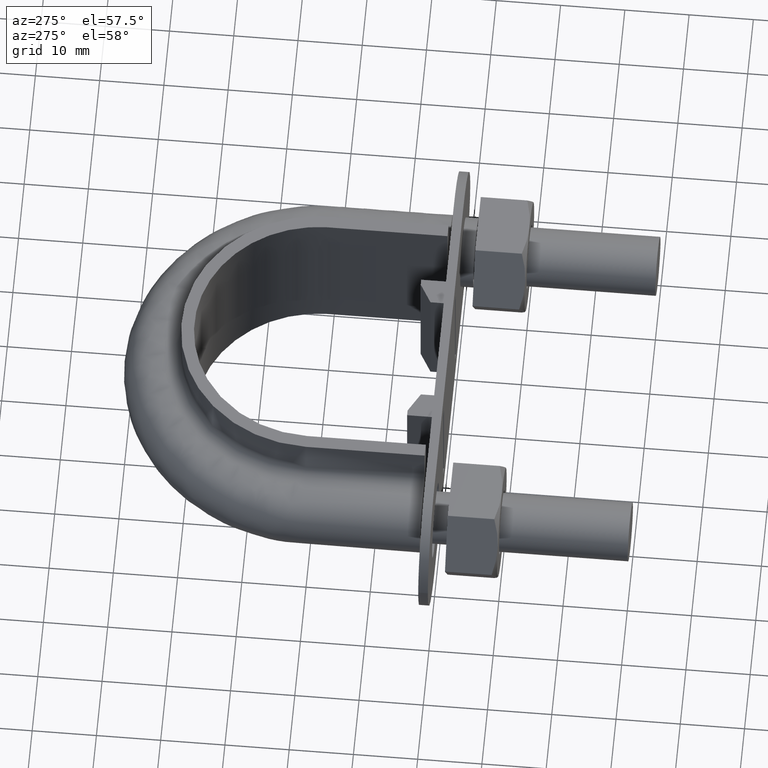
[diagram: clean part render]
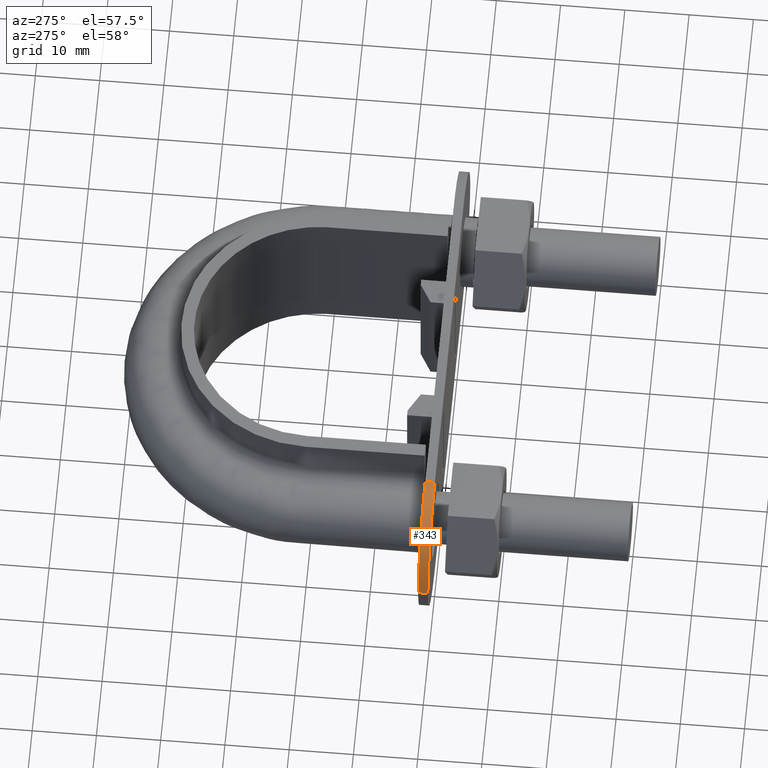
[diagram: same view with one face highlighted and labeled with its STEP entity id]
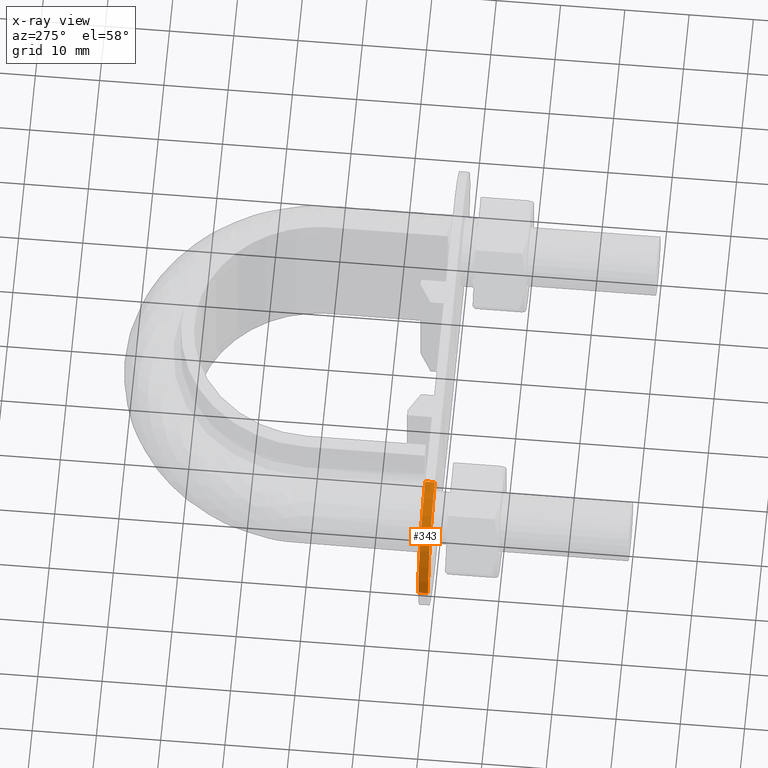
[diagram: x-ray of the same camera — body ghosted, the highlighted face saturated]
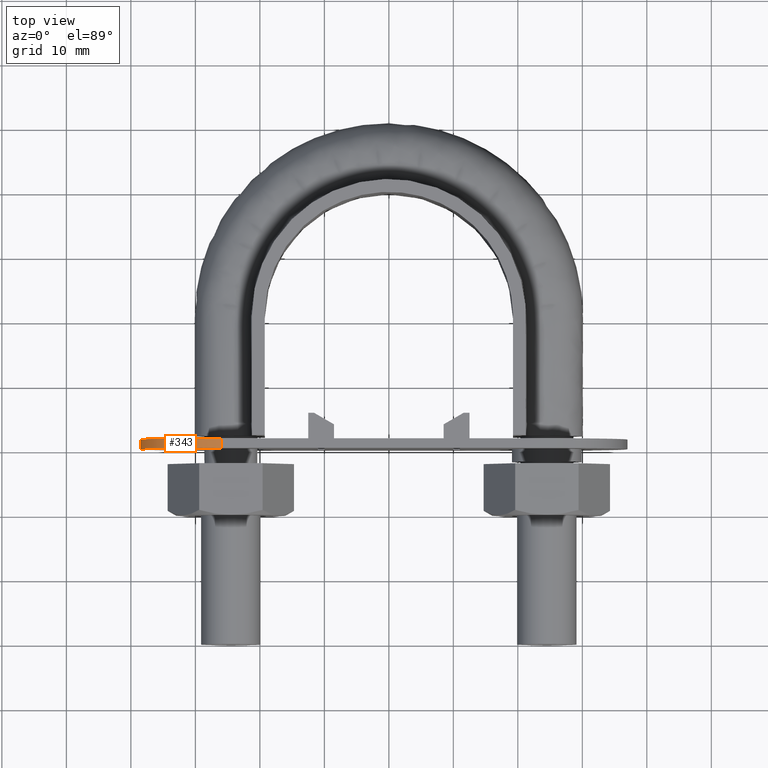
[diagram: same view with one face highlighted and labeled with its STEP entity id]
A machine part, auxiliary view. The second image highlights one B-rep face of the part: STEP entity #343.
The next image is the same camera in x-ray: the body ghosted, the highlighted face saturated — about 0% of this face is hidden behind the body in this view.
A second angle (top view) of the same face is appended — the face is thin or edge-on in the first view.
In plain terms, the highlighted cylindrical surface (partial cylindrical patch) has radius 12.5 mm, axis along (-0, -1, 0).
Its self-contained STEP definition (entity closure, byte-faithful):
#343 = ADVANCED_FACE( '', ( #553 ), #554, .T. );
#553 = FACE_OUTER_BOUND( '', #1481, .T. );
#554 = CYLINDRICAL_SURFACE( '', #1482, 12.5000000000000 );
#1481 = EDGE_LOOP( '', ( #2116, #2117, #2118, #2119 ) );
#1482 = AXIS2_PLACEMENT_3D( '', #2120, #2121, #2122 );
#2116 = ORIENTED_EDGE( '', *, *, #2550, .F. );
#2117 = ORIENTED_EDGE( '', *, *, #2551, .F. );
#2118 = ORIENTED_EDGE( '', *, *, #2535, .T. );
#2119 = ORIENTED_EDGE( '', *, *, #2552, .T. );
#2120 = CARTESIAN_POINT( '', ( -26.0010000000000, 30.3000000000001, 3.06562700418712E-013 ) );
#2121 = DIRECTION( '', ( -1.88900066577584E-016, -1.00000000000000, 1.00538905774030E-016 ) );
#2122 = DIRECTION( '', ( 1.16573417585698E-014, 1.00538905774028E-016, 1.00000000000000 ) );
#2535 = EDGE_CURVE( '', #2873, #2874, #2875, .T. );
#2550 = EDGE_CURVE( '', #2903, #2904, #2905, .T. );
#2551 = EDGE_CURVE( '', #2873, #2903, #2906, .T. );
#2552 = EDGE_CURVE( '', #2874, #2904, #2907, .T. );
#2873 = VERTEX_POINT( '', #3615 );
#2874 = VERTEX_POINT( '', #3616 );
#2875 = CIRCLE( '', #3617, 12.5000000000000 );
#2903 = VERTEX_POINT( '', #3653 );
#2904 = VERTEX_POINT( '', #3654 );
#2905 = CIRCLE( '', #3655, 12.5000000000000 );
#2906 = LINE( '', #3656, #3657 );
#2907 = LINE( '', #3658, #3659 );
#3615 = CARTESIAN_POINT( '', ( -38.5010000000000, 30.3000000000001, 4.52279472400835E-013 ) );
#3616 = CARTESIAN_POINT( '', ( -26.0009999999999, 30.3000000000001, 12.5000000000003 ) );
#3617 = AXIS2_PLACEMENT_3D( '', #4061, #4062, #4063 );
#3653 = CARTESIAN_POINT( '', ( -38.5010000000000, 31.8000000000001, 4.52128664042174E-013 ) );
#3654 = CARTESIAN_POINT( '', ( -26.0009999999999, 31.8000000000001, 12.5000000000003 ) );
#3655 = AXIS2_PLACEMENT_3D( '', #4090, #4091, #4092 );
#3656 = CARTESIAN_POINT( '', ( -38.5010000000000, 30.3000000000001, 4.52279472400835E-013 ) );
#3657 = VECTOR( '', #4093, 1000.00000000000 );
#3658 = CARTESIAN_POINT( '', ( -26.0009999999999, 30.3000000000001, 12.5000000000003 ) );
#3659 = VECTOR( '', #4094, 1000.00000000000 );
#4061 = CARTESIAN_POINT( '', ( -26.0010000000000, 30.3000000000001, 3.06562700418712E-013 ) );
#4062 = DIRECTION( '', ( 1.88900066577584E-016, 1.00000000000000, -1.00538905774030E-016 ) );
#4063 = DIRECTION( '', ( -1.00000000000000, 1.88900066577585E-016, 1.15185638804917E-014 ) );
#4090 = CARTESIAN_POINT( '', ( -26.0010000000000, 31.8000000000001, 3.06411892060051E-013 ) );
#4091 = DIRECTION( '', ( 1.88900066577584E-016, 1.00000000000000, -1.00538905774030E-016 ) );
#4092 = DIRECTION( '', ( -1.00000000000000, 1.88900066577585E-016, 1.15185638804917E-014 ) );
#4093 = DIRECTION( '', ( 1.88900066577584E-016, 1.00000000000000, -1.00538905774030E-016 ) );
#4094 = DIRECTION( '', ( 1.88900066577584E-016, 1.00000000000000, -1.00538905774030E-016 ) );